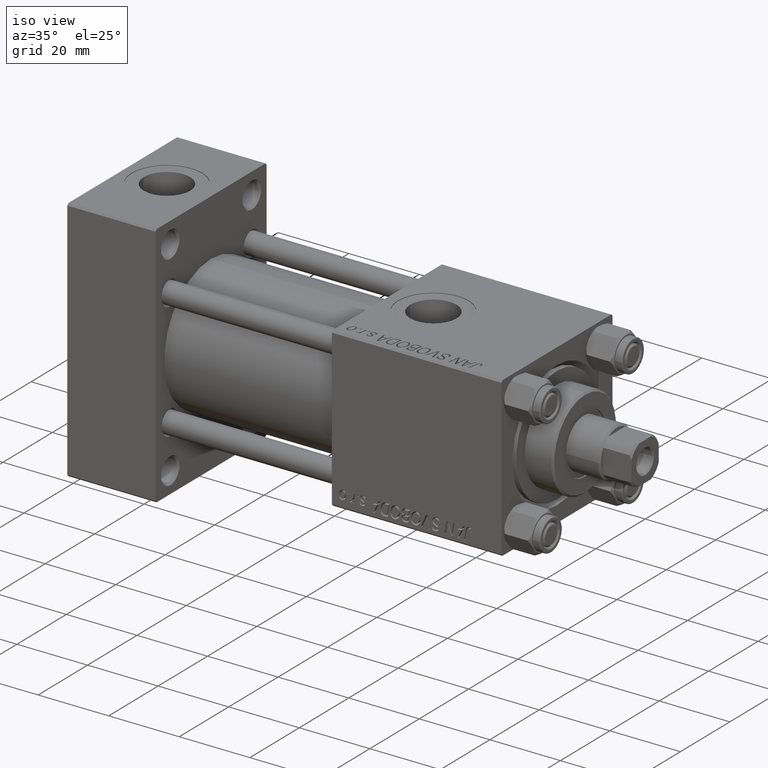
[diagram: clean part render]
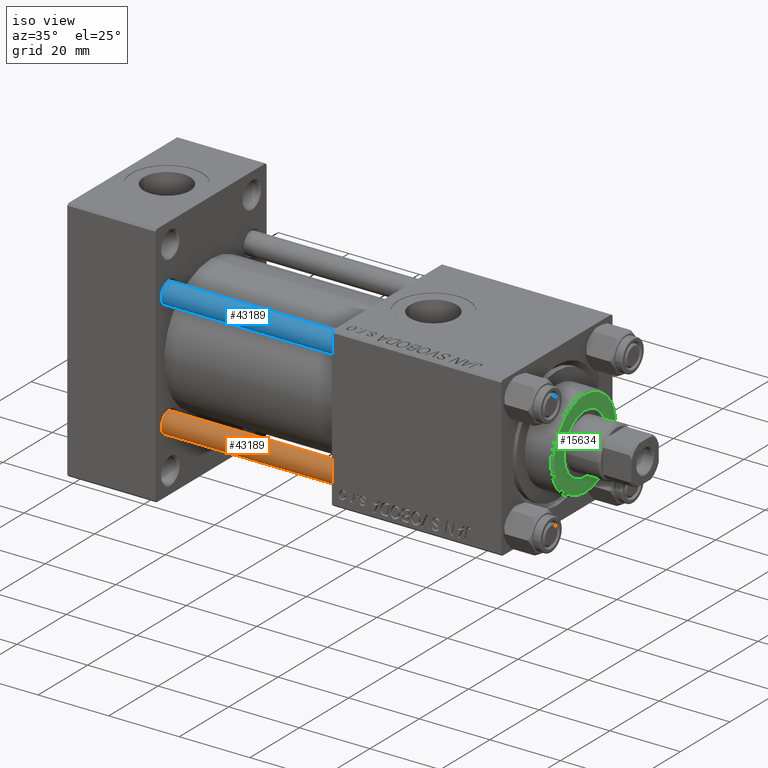
[diagram: same view with three faces highlighted in distinct colors, each labeled with its STEP entity id]
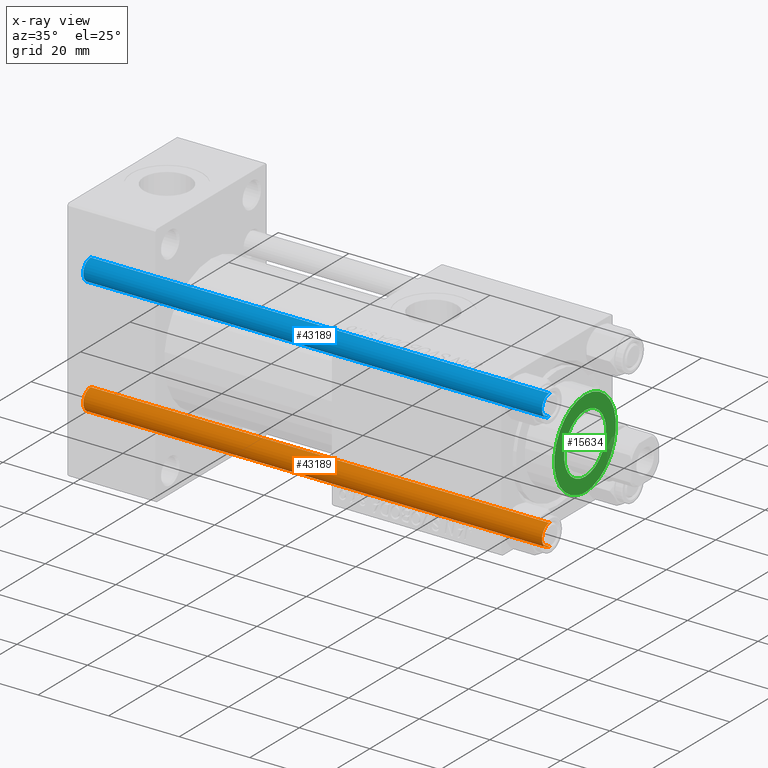
[diagram: x-ray of the same camera — body ghosted, the three highlighted faces saturated]
A machine part, iso view with three faces highlighted in distinct colors.
The next image is the same camera in x-ray (body ghosted, the three faces saturated) — at least one of them is partly hidden behind the body in this view.
Their STEP definitions:

[orange] entity #43189 — the highlighted cylindrical surface (edge-blend (fillet) strip) has radius 3 mm, axis along (1, -0, -0).
#107 = ORIENTED_EDGE ( 'NONE', *, *, #2514, .T. ) ;
#358 = VERTEX_POINT ( 'NONE', #42500 ) ;
#2514 = EDGE_CURVE ( 'NONE', #24583, #358, #48543, .T. ) ;
#3667 = EDGE_CURVE ( 'NONE', #14142, #34673, #45945, .T. ) ;
#3922 = ORIENTED_EDGE ( 'NONE', *, *, #3667, .F. ) ;
#4507 = FACE_OUTER_BOUND ( 'NONE', #9561, .T. ) ;
#4793 = DIRECTION ( 'NONE',  ( 0.000000000000000000, 0.000000000000000000, -1.000000000000000000 ) ) ;
#6563 = ORIENTED_EDGE ( 'NONE', *, *, #10992, .T. ) ;
#7001 = AXIS2_PLACEMENT_3D ( 'NONE', #19688, #4793, #39657 ) ;
#7550 = DIRECTION ( 'NONE',  ( -0.000000000000000000, -0.000000000000000000, -1.000000000000000000 ) ) ;
#9561 = EDGE_LOOP ( 'NONE', ( #3922, #38842, #107, #6563 ) ) ;
#9963 = CARTESIAN_POINT ( 'NONE',  ( 3.000000000000000444, 3.673940397442060361E-16, 0.5000000000000281997 ) ) ;
#10992 = EDGE_CURVE ( 'NONE', #358, #34673, #45482, .T. ) ;
#11821 = CARTESIAN_POINT ( 'NONE',  ( 3.000000000000000444, 3.673940397442060361E-16, 130.5000000000000284 ) ) ;
#11835 = CYLINDRICAL_SURFACE ( 'NONE', #45559, 3.000000000000000444 ) ;
#14142 = VERTEX_POINT ( 'NONE', #11821 ) ;
#15119 = DIRECTION ( 'NONE',  ( -0.000000000000000000, -0.000000000000000000, 1.000000000000000000 ) ) ;
#17664 = EDGE_CURVE ( 'NONE', #14142, #24583, #32857, .T. ) ;
#19407 = CARTESIAN_POINT ( 'NONE',  ( 0.000000000000000000, 0.000000000000000000, 131.0000000000000000 ) ) ;
#19688 = CARTESIAN_POINT ( 'NONE',  ( 0.000000000000000000, 0.000000000000000000, 130.5000000000000284 ) ) ;
#23705 = DIRECTION ( 'NONE',  ( -1.000000000000000000, 0.000000000000000000, 0.000000000000000000 ) ) ;
#24583 = VERTEX_POINT ( 'NONE', #25388 ) ;
#25055 = DIRECTION ( 'NONE',  ( -0.000000000000000000, -0.000000000000000000, -1.000000000000000000 ) ) ;
#25388 = CARTESIAN_POINT ( 'NONE',  ( -3.000000000000000444, 0.000000000000000000, 130.5000000000000284 ) ) ;
#27766 = DIRECTION ( 'NONE',  ( -0.000000000000000000, -0.000000000000000000, -1.000000000000000000 ) ) ;
#29104 = VECTOR ( 'NONE', #7550, 1000.000000000000000 ) ;
#29373 = AXIS2_PLACEMENT_3D ( 'NONE', #44945, #15119, #38131 ) ;
#29782 = VECTOR ( 'NONE', #25055, 1000.000000000000000 ) ;
#32857 = CIRCLE ( 'NONE', #7001, 3.000000000000000444 ) ;
#34673 = VERTEX_POINT ( 'NONE', #9963 ) ;
#38131 = DIRECTION ( 'NONE',  ( 1.000000000000000000, 0.000000000000000000, 0.000000000000000000 ) ) ;
#38842 = ORIENTED_EDGE ( 'NONE', *, *, #17664, .T. ) ;
#39657 = DIRECTION ( 'NONE',  ( 1.000000000000000000, 0.000000000000000000, 0.000000000000000000 ) ) ;
#42160 = CARTESIAN_POINT ( 'NONE',  ( 3.000000000000000444, 3.673940397442060361E-16, 131.0000000000000000 ) ) ;
#42500 = CARTESIAN_POINT ( 'NONE',  ( -3.000000000000000444, 0.000000000000000000, 0.5000000000000281997 ) ) ;
#43189 = ADVANCED_FACE ( 'NONE', ( #4507 ), #11835, .T. ) ;
#44261 = CARTESIAN_POINT ( 'NONE',  ( -3.000000000000000444, 0.000000000000000000, 131.0000000000000000 ) ) ;
#44945 = CARTESIAN_POINT ( 'NONE',  ( 0.000000000000000000, 0.000000000000000000, 0.5000000000000281997 ) ) ;
#45482 = CIRCLE ( 'NONE', #29373, 3.000000000000000444 ) ;
#45559 = AXIS2_PLACEMENT_3D ( 'NONE', #19407, #27766, #23705 ) ;
#45945 = LINE ( 'NONE', #42160, #29104 ) ;
#48543 = LINE ( 'NONE', #44261, #29782 ) ;

[blue] entity #43189 — the highlighted cylindrical surface (edge-blend (fillet) strip) has radius 3 mm, axis along (-1, 0, -0).
#107 = ORIENTED_EDGE ( 'NONE', *, *, #2514, .T. ) ;
#358 = VERTEX_POINT ( 'NONE', #42500 ) ;
#2514 = EDGE_CURVE ( 'NONE', #24583, #358, #48543, .T. ) ;
#3667 = EDGE_CURVE ( 'NONE', #14142, #34673, #45945, .T. ) ;
#3922 = ORIENTED_EDGE ( 'NONE', *, *, #3667, .F. ) ;
#4507 = FACE_OUTER_BOUND ( 'NONE', #9561, .T. ) ;
#4793 = DIRECTION ( 'NONE',  ( 0.000000000000000000, 0.000000000000000000, -1.000000000000000000 ) ) ;
#6563 = ORIENTED_EDGE ( 'NONE', *, *, #10992, .T. ) ;
#7001 = AXIS2_PLACEMENT_3D ( 'NONE', #19688, #4793, #39657 ) ;
#7550 = DIRECTION ( 'NONE',  ( -0.000000000000000000, -0.000000000000000000, -1.000000000000000000 ) ) ;
#9561 = EDGE_LOOP ( 'NONE', ( #3922, #38842, #107, #6563 ) ) ;
#9963 = CARTESIAN_POINT ( 'NONE',  ( 3.000000000000000444, 3.673940397442060361E-16, 0.5000000000000281997 ) ) ;
#10992 = EDGE_CURVE ( 'NONE', #358, #34673, #45482, .T. ) ;
#11821 = CARTESIAN_POINT ( 'NONE',  ( 3.000000000000000444, 3.673940397442060361E-16, 130.5000000000000284 ) ) ;
#11835 = CYLINDRICAL_SURFACE ( 'NONE', #45559, 3.000000000000000444 ) ;
#14142 = VERTEX_POINT ( 'NONE', #11821 ) ;
#15119 = DIRECTION ( 'NONE',  ( -0.000000000000000000, -0.000000000000000000, 1.000000000000000000 ) ) ;
#17664 = EDGE_CURVE ( 'NONE', #14142, #24583, #32857, .T. ) ;
#19407 = CARTESIAN_POINT ( 'NONE',  ( 0.000000000000000000, 0.000000000000000000, 131.0000000000000000 ) ) ;
#19688 = CARTESIAN_POINT ( 'NONE',  ( 0.000000000000000000, 0.000000000000000000, 130.5000000000000284 ) ) ;
#23705 = DIRECTION ( 'NONE',  ( -1.000000000000000000, 0.000000000000000000, 0.000000000000000000 ) ) ;
#24583 = VERTEX_POINT ( 'NONE', #25388 ) ;
#25055 = DIRECTION ( 'NONE',  ( -0.000000000000000000, -0.000000000000000000, -1.000000000000000000 ) ) ;
#25388 = CARTESIAN_POINT ( 'NONE',  ( -3.000000000000000444, 0.000000000000000000, 130.5000000000000284 ) ) ;
#27766 = DIRECTION ( 'NONE',  ( -0.000000000000000000, -0.000000000000000000, -1.000000000000000000 ) ) ;
#29104 = VECTOR ( 'NONE', #7550, 1000.000000000000000 ) ;
#29373 = AXIS2_PLACEMENT_3D ( 'NONE', #44945, #15119, #38131 ) ;
#29782 = VECTOR ( 'NONE', #25055, 1000.000000000000000 ) ;
#32857 = CIRCLE ( 'NONE', #7001, 3.000000000000000444 ) ;
#34673 = VERTEX_POINT ( 'NONE', #9963 ) ;
#38131 = DIRECTION ( 'NONE',  ( 1.000000000000000000, 0.000000000000000000, 0.000000000000000000 ) ) ;
#38842 = ORIENTED_EDGE ( 'NONE', *, *, #17664, .T. ) ;
#39657 = DIRECTION ( 'NONE',  ( 1.000000000000000000, 0.000000000000000000, 0.000000000000000000 ) ) ;
#42160 = CARTESIAN_POINT ( 'NONE',  ( 3.000000000000000444, 3.673940397442060361E-16, 131.0000000000000000 ) ) ;
#42500 = CARTESIAN_POINT ( 'NONE',  ( -3.000000000000000444, 0.000000000000000000, 0.5000000000000281997 ) ) ;
#43189 = ADVANCED_FACE ( 'NONE', ( #4507 ), #11835, .T. ) ;
#44261 = CARTESIAN_POINT ( 'NONE',  ( -3.000000000000000444, 0.000000000000000000, 131.0000000000000000 ) ) ;
#44945 = CARTESIAN_POINT ( 'NONE',  ( 0.000000000000000000, 0.000000000000000000, 0.5000000000000281997 ) ) ;
#45482 = CIRCLE ( 'NONE', #29373, 3.000000000000000444 ) ;
#45559 = AXIS2_PLACEMENT_3D ( 'NONE', #19407, #27766, #23705 ) ;
#45945 = LINE ( 'NONE', #42160, #29104 ) ;
#48543 = LINE ( 'NONE', #44261, #29782 ) ;

[green] entity #15634 — the highlighted planar face has unit normal (1, 0, 0).
#1259 = EDGE_CURVE ( 'NONE', #34937, #29137, #31355, .T. ) ;
#2399 = DIRECTION ( 'NONE',  ( 1.000000000000000000, 0.000000000000000000, 0.000000000000000000 ) ) ;
#4772 = PLANE ( 'NONE',  #40796 ) ;
#7139 = ORIENTED_EDGE ( 'NONE', *, *, #1259, .T. ) ;
#7702 = CARTESIAN_POINT ( 'NONE',  ( -8.500000000000000000, 1.040949779275250140E-15, 36.69999999999999574 ) ) ;
#9172 = EDGE_LOOP ( 'NONE', ( #11856, #36950 ) ) ;
#9542 = EDGE_CURVE ( 'NONE', #29137, #34937, #14791, .T. ) ;
#10475 = DIRECTION ( 'NONE',  ( 0.000000000000000000, 0.000000000000000000, 1.000000000000000000 ) ) ;
#11033 = DIRECTION ( 'NONE',  ( 0.000000000000000000, 0.000000000000000000, 1.000000000000000000 ) ) ;
#11856 = ORIENTED_EDGE ( 'NONE', *, *, #16123, .F. ) ;
#13519 = CARTESIAN_POINT ( 'NONE',  ( 0.000000000000000000, 0.000000000000000000, 36.69999999999999574 ) ) ;
#13678 = EDGE_CURVE ( 'NONE', #28335, #42811, #47187, .T. ) ;
#13720 = DIRECTION ( 'NONE',  ( 1.000000000000000000, 0.000000000000000000, 0.000000000000000000 ) ) ;
#14791 = CIRCLE ( 'NONE', #41411, 12.50000000000001066 ) ;
#14819 = DIRECTION ( 'NONE',  ( 1.000000000000000000, 0.000000000000000000, 0.000000000000000000 ) ) ;
#15634 = ADVANCED_FACE ( 'NONE', ( #40370, #28757 ), #4772, .T. ) ;
#15781 = CARTESIAN_POINT ( 'NONE',  ( 12.50000000000001066, 1.561424668912876097E-15, 36.69999999999999574 ) ) ;
#16123 = EDGE_CURVE ( 'NONE', #42811, #28335, #27107, .T. ) ;
#20409 = DIRECTION ( 'NONE',  ( 1.000000000000000000, 0.000000000000000000, -0.000000000000000000 ) ) ;
#24294 = CARTESIAN_POINT ( 'NONE',  ( 0.000000000000000000, 0.000000000000000000, 36.69999999999999574 ) ) ;
#27107 = CIRCLE ( 'NONE', #31959, 8.500000000000000000 ) ;
#27213 = CARTESIAN_POINT ( 'NONE',  ( 0.000000000000000000, 0.000000000000000000, 36.69999999999999574 ) ) ;
#28335 = VERTEX_POINT ( 'NONE', #7702 ) ;
#28757 = FACE_OUTER_BOUND ( 'NONE', #48545, .T. ) ;
#29137 = VERTEX_POINT ( 'NONE', #15781 ) ;
#29403 = DIRECTION ( 'NONE',  ( 0.000000000000000000, 0.000000000000000000, 1.000000000000000000 ) ) ;
#31156 = DIRECTION ( 'NONE',  ( 1.000000000000000000, 0.000000000000000000, 0.000000000000000000 ) ) ;
#31355 = CIRCLE ( 'NONE', #48262, 12.50000000000001066 ) ;
#31959 = AXIS2_PLACEMENT_3D ( 'NONE', #13519, #10475, #2399 ) ;
#33870 = ORIENTED_EDGE ( 'NONE', *, *, #9542, .T. ) ;
#34937 = VERTEX_POINT ( 'NONE', #36215 ) ;
#36215 = CARTESIAN_POINT ( 'NONE',  ( -12.50000000000001066, 0.000000000000000000, 36.69999999999999574 ) ) ;
#36950 = ORIENTED_EDGE ( 'NONE', *, *, #13678, .F. ) ;
#39719 = DIRECTION ( 'NONE',  ( 0.000000000000000000, 0.000000000000000000, 1.000000000000000000 ) ) ;
#40127 = DIRECTION ( 'NONE',  ( 0.000000000000000000, 0.000000000000000000, 1.000000000000000000 ) ) ;
#40298 = CARTESIAN_POINT ( 'NONE',  ( 8.500000000000000000, 0.000000000000000000, 36.69999999999999574 ) ) ;
#40370 = FACE_BOUND ( 'NONE', #9172, .T. ) ;
#40796 = AXIS2_PLACEMENT_3D ( 'NONE', #43908, #40127, #20409 ) ;
#41411 = AXIS2_PLACEMENT_3D ( 'NONE', #27213, #11033, #14819 ) ;
#42811 = VERTEX_POINT ( 'NONE', #40298 ) ;
#43908 = CARTESIAN_POINT ( 'NONE',  ( 0.000000000000000000, 0.000000000000000000, 36.69999999999999574 ) ) ;
#44759 = AXIS2_PLACEMENT_3D ( 'NONE', #48347, #29403, #13720 ) ;
#47187 = CIRCLE ( 'NONE', #44759, 8.500000000000000000 ) ;
#48262 = AXIS2_PLACEMENT_3D ( 'NONE', #24294, #39719, #31156 ) ;
#48347 = CARTESIAN_POINT ( 'NONE',  ( 0.000000000000000000, 0.000000000000000000, 36.69999999999999574 ) ) ;
#48545 = EDGE_LOOP ( 'NONE', ( #7139, #33870 ) ) ;